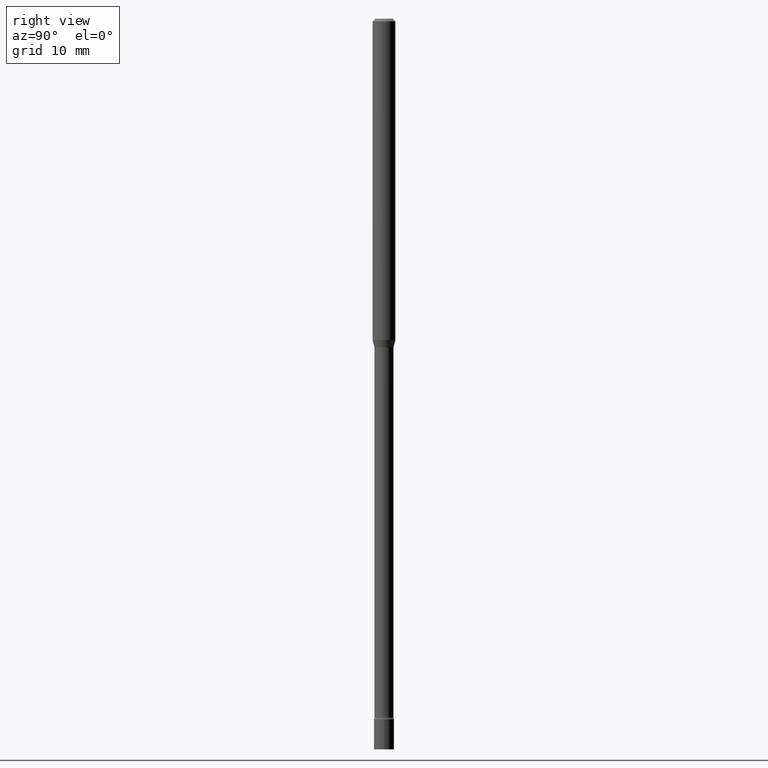
[diagram: clean part render]
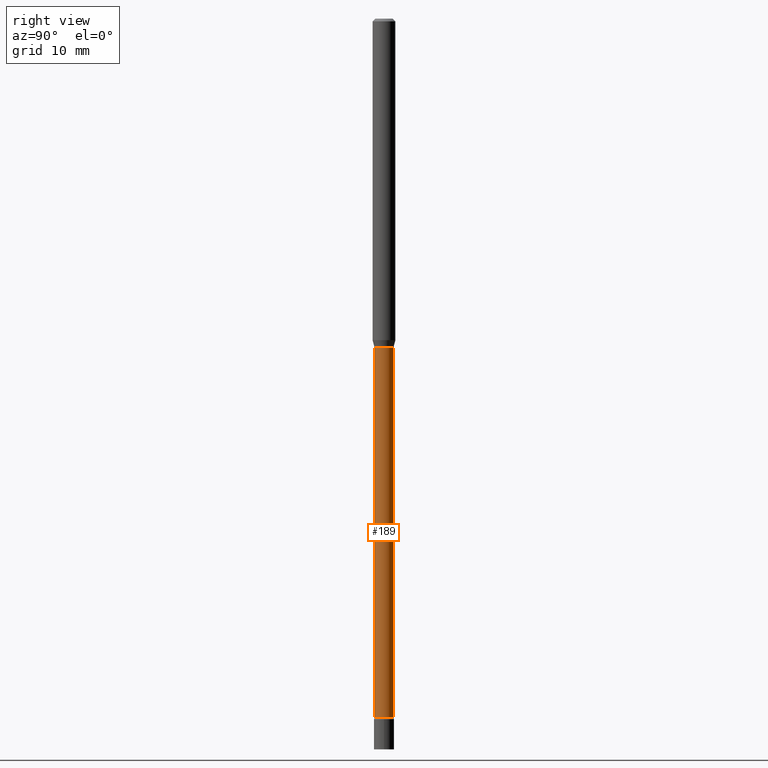
[diagram: same view with one face highlighted and labeled with its STEP entity id]
A machine part, right view. The second image highlights one B-rep face of the part: STEP entity #189.
In plain terms, the highlighted cylindrical surface (edge-blend (fillet) strip) has radius 1.3132 mm, axis along (-0, 0, 1).
Its self-contained STEP definition (entity closure, byte-faithful):
#19 = VERTEX_POINT ( 'NONE', #64 ) ;
#36 = DIRECTION ( 'NONE',  ( -2.445416266167608295E-29, 3.491556579138638148E-15, 1.000000000000000000 ) ) ;
#63 = CARTESIAN_POINT ( 'NONE',  ( 3.790745495281079758E-16, 0.05169999999998692308, -3.825613307291703347 ) ) ;
#64 = CARTESIAN_POINT ( 'NONE',  ( -3.610191704363358766E-16, -0.05170000000000628260, -1.801974787463810346 ) ) ;
#73 = ORIENTED_EDGE ( 'NONE', *, *, #125, .F. ) ;
#74 = CARTESIAN_POINT ( 'NONE',  ( 9.355217009718392253E-29, -1.335734531231467020E-14, -3.825613307291703347 ) ) ;
#83 = CARTESIAN_POINT ( 'NONE',  ( -3.610191704363808910E-16, -0.05170000000000013474, 1.805134751414680671E-16 ) ) ;
#109 = VERTEX_POINT ( 'NONE', #322 ) ;
#121 = AXIS2_PLACEMENT_3D ( 'NONE', #356, #394, #157 ) ;
#125 = EDGE_CURVE ( 'NONE', #504, #19, #243, .T. ) ;
#135 = CYLINDRICAL_SURFACE ( 'NONE', #153, 0.05170000000000013474 ) ;
#153 = AXIS2_PLACEMENT_3D ( 'NONE', #208, #375, #330 ) ;
#157 = DIRECTION ( 'NONE',  ( -6.982962677686266711E-15, -1.000000000000000000, 5.284038672464726492E-15 ) ) ;
#167 = EDGE_CURVE ( 'NONE', #258, #109, #168, .T. ) ;
#168 = LINE ( 'NONE', #249, #495 ) ;
#189 = ADVANCED_FACE ( 'NONE', ( #451 ), #135, .T. ) ;
#208 = CARTESIAN_POINT ( 'NONE',  ( 0.000000000000000000, 0.000000000000000000, 0.000000000000000000 ) ) ;
#209 = AXIS2_PLACEMENT_3D ( 'NONE', #74, #36, #315 ) ;
#243 = LINE ( 'NONE', #83, #446 ) ;
#249 = CARTESIAN_POINT ( 'NONE',  ( 3.673505943879727042E-16, 0.05170000000000013474, -1.805134751414680671E-16 ) ) ;
#258 = VERTEX_POINT ( 'NONE', #63 ) ;
#304 = ORIENTED_EDGE ( 'NONE', *, *, #484, .T. ) ;
#315 = DIRECTION ( 'NONE',  ( -6.982962677686265922E-15, -1.000000000000000000, 0.000000000000000000 ) ) ;
#319 = CARTESIAN_POINT ( 'NONE',  ( -3.610191704362883971E-16, -0.05170000000001364476, -3.825613307291703347 ) ) ;
#322 = CARTESIAN_POINT ( 'NONE',  ( 3.673505943880660363E-16, 0.05169999999999370238, -1.801974787463811012 ) ) ;
#330 = DIRECTION ( 'NONE',  ( -6.982962677686265922E-15, -1.000000000000000000, 3.491556579138638148E-15 ) ) ;
#335 = ORIENTED_EDGE ( 'NONE', *, *, #500, .F. ) ;
#356 = CARTESIAN_POINT ( 'NONE',  ( 4.406578456487921507E-29, -6.291696924611217615E-15, -1.801974787463810568 ) ) ;
#361 = EDGE_LOOP ( 'NONE', ( #304, #499, #335, #73 ) ) ;
#370 = CIRCLE ( 'NONE', #209, 0.05170000000000028045 ) ;
#375 = DIRECTION ( 'NONE',  ( -2.445416266167608295E-29, 3.491556579138638148E-15, 1.000000000000000000 ) ) ;
#394 = DIRECTION ( 'NONE',  ( -2.445416266167608295E-29, 3.491556579138638148E-15, 1.000000000000000000 ) ) ;
#405 = DIRECTION ( 'NONE',  ( -2.445416266167608014E-29, 3.491556579138637754E-15, 1.000000000000000000 ) ) ;
#446 = VECTOR ( 'NONE', #405, 39.37007874015748143 ) ;
#451 = FACE_OUTER_BOUND ( 'NONE', #361, .T. ) ;
#453 = DIRECTION ( 'NONE',  ( -2.445416266167608014E-29, 3.491556579138637754E-15, 1.000000000000000000 ) ) ;
#484 = EDGE_CURVE ( 'NONE', #504, #258, #370, .T. ) ;
#495 = VECTOR ( 'NONE', #453, 39.37007874015748143 ) ;
#499 = ORIENTED_EDGE ( 'NONE', *, *, #167, .T. ) ;
#500 = EDGE_CURVE ( 'NONE', #19, #109, #508, .T. ) ;
#504 = VERTEX_POINT ( 'NONE', #319 ) ;
#508 = CIRCLE ( 'NONE', #121, 0.05169999999999998902 ) ;